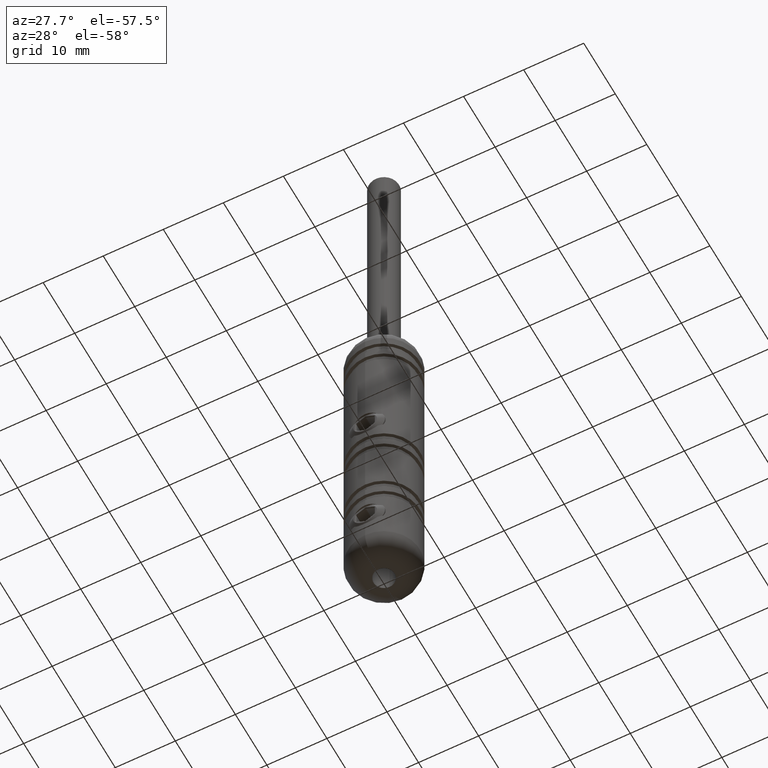
[diagram: clean part render]
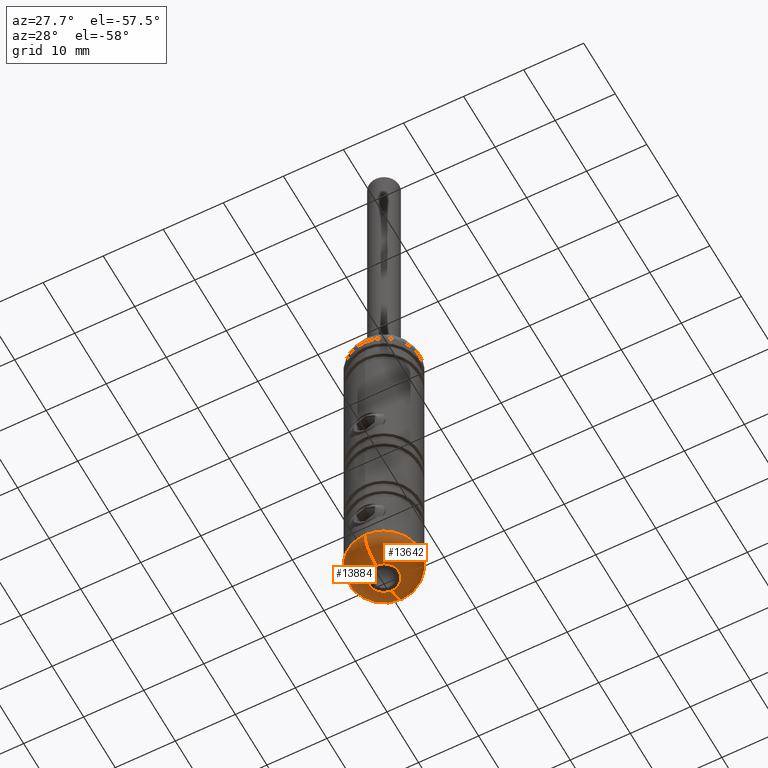
[diagram: same view with one multi-face feature highlighted, each face labeled with its STEP entity id]
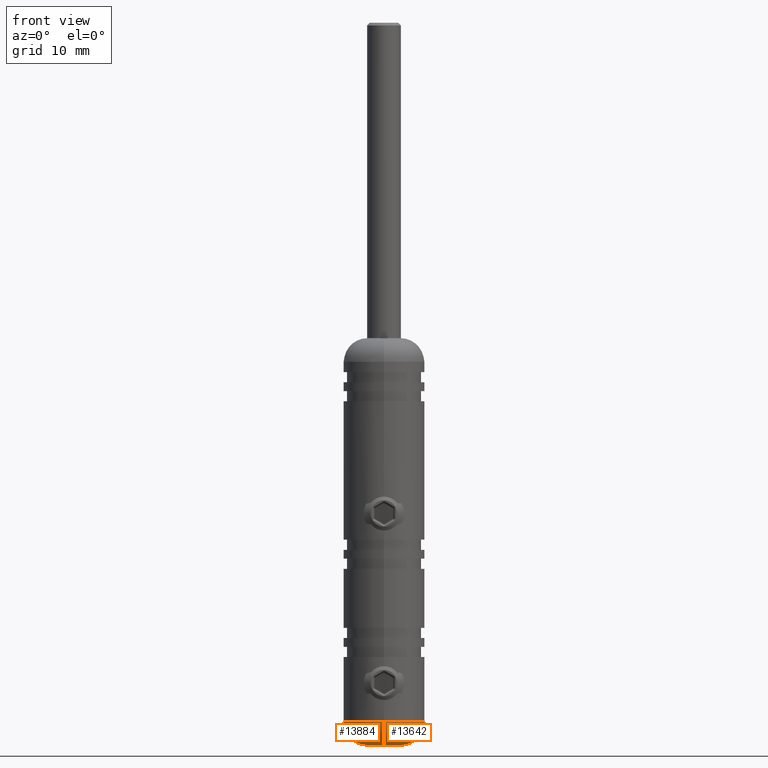
[diagram: same view with one multi-face feature highlighted, each face labeled with its STEP entity id]
A machine part, auxiliary view. The highlighted faces form ONE feature: a constant-radius fillet chain: 2 tangent blend faces with common blend radius 3.5 mm. The faces share edges in the B-rep.
A second angle (front view) of the same feature is appended — it is thin or edge-on in the first view.
Their STEP definitions:
[1] entity #13884 (Torus):
#930 = DIRECTION ( 'NONE',  ( -1.000000000000000000, -0.0000000000000000000, 0.0000000000000000000 ) ) ;
#973 = EDGE_CURVE ( 'NONE', #1718, #4152, #6203, .T. ) ;
#1162 = DIRECTION ( 'NONE',  ( 0.0000000000000000000, -1.000000000000000000, 0.0000000000000000000 ) ) ;
#1718 = VERTEX_POINT ( 'NONE', #8542 ) ;
#1755 = TOROIDAL_SURFACE ( 'NONE', #10000, 2.499999999999991600, 3.500000000000000000 ) ;
#1883 = CARTESIAN_POINT ( 'NONE',  ( 3.061616997868372300E-016, 2.499999999999988000, -26.49999999999999600 ) ) ;
#2388 = DIRECTION ( 'NONE',  ( 0.0000000000000000000, 0.0000000000000000000, 1.000000000000000000 ) ) ;
#4152 = VERTEX_POINT ( 'NONE', #12722 ) ;
#4240 = DIRECTION ( 'NONE',  ( 0.0000000000000000000, -6.241551396031028600E-017, -1.000000000000000000 ) ) ;
#4519 = CIRCLE ( 'NONE', #15533, 3.500000000000000000 ) ;
#5638 = CARTESIAN_POINT ( 'NONE',  ( 5.204748896376240800E-016, 2.499999999999987600, -30.00000000000000000 ) ) ;
#5874 = DIRECTION ( 'NONE',  ( 1.224646799147353200E-016, 1.000000000000000000, 0.0000000000000000000 ) ) ;
#5902 = CARTESIAN_POINT ( 'NONE',  ( 0.0000000000000000000, -2.499999999999995100, -30.00000000000000000 ) ) ;
#6203 = CIRCLE ( 'NONE', #7795, 5.999999999999991100 ) ;
#6717 = EDGE_CURVE ( 'NONE', #9518, #4152, #6950, .T. ) ;
#6950 = CIRCLE ( 'NONE', #10410, 3.499999999999999600 ) ;
#7552 = ORIENTED_EDGE ( 'NONE', *, *, #11307, .F. ) ;
#7559 = CARTESIAN_POINT ( 'NONE',  ( 0.0000000000000000000, -2.499999999999994700, -26.49999999999999600 ) ) ;
#7795 = AXIS2_PLACEMENT_3D ( 'NONE', #15819, #7847, #1162 ) ;
#7847 = DIRECTION ( 'NONE',  ( -0.0000000000000000000, 6.241551396031028600E-017, 1.000000000000000000 ) ) ;
#8236 = DIRECTION ( 'NONE',  ( 0.0000000000000000000, -1.000000000000000000, 0.0000000000000000000 ) ) ;
#8525 = ORIENTED_EDGE ( 'NONE', *, *, #16180, .F. ) ;
#8542 = CARTESIAN_POINT ( 'NONE',  ( 7.347880794884108900E-016, 5.999999999999987600, -26.49999999999999600 ) ) ;
#9518 = VERTEX_POINT ( 'NONE', #5902 ) ;
#9533 = EDGE_LOOP ( 'NONE', ( #7552, #8525, #10586, #14081 ) ) ;
#10000 = AXIS2_PLACEMENT_3D ( 'NONE', #17119, #11794, #13102 ) ;
#10410 = AXIS2_PLACEMENT_3D ( 'NONE', #7559, #930, #2388 ) ;
#10586 = ORIENTED_EDGE ( 'NONE', *, *, #6717, .T. ) ;
#10708 = AXIS2_PLACEMENT_3D ( 'NONE', #17350, #4240, #8236 ) ;
#11170 = CIRCLE ( 'NONE', #10708, 2.499999999999991600 ) ;
#11307 = EDGE_CURVE ( 'NONE', #15425, #1718, #4519, .T. ) ;
#11794 = DIRECTION ( 'NONE',  ( -0.0000000000000000000, 6.241551396031028600E-017, 1.000000000000000000 ) ) ;
#12722 = CARTESIAN_POINT ( 'NONE',  ( 0.0000000000000000000, -5.999999999999994700, -26.49999999999999600 ) ) ;
#12852 = FACE_OUTER_BOUND ( 'NONE', #9533, .T. ) ;
#13102 = DIRECTION ( 'NONE',  ( 0.0000000000000000000, -1.000000000000000000, 6.241551396031028600E-017 ) ) ;
#13884 = ADVANCED_FACE ( 'NONE', ( #12852 ), #1755, .T. ) ;
#14081 = ORIENTED_EDGE ( 'NONE', *, *, #973, .F. ) ;
#15198 = DIRECTION ( 'NONE',  ( 1.000000000000000000, -1.224646799147353200E-016, 7.643695938863093300E-033 ) ) ;
#15425 = VERTEX_POINT ( 'NONE', #5638 ) ;
#15533 = AXIS2_PLACEMENT_3D ( 'NONE', #1883, #15198, #5874 ) ;
#15819 = CARTESIAN_POINT ( 'NONE',  ( 0.0000000000000000000, -3.526476538757531000E-015, -26.49999999999999600 ) ) ;
#16180 = EDGE_CURVE ( 'NONE', #9518, #15425, #11170, .T. ) ;
#17119 = CARTESIAN_POINT ( 'NONE',  ( 0.0000000000000000000, -3.526476538757531000E-015, -26.49999999999999600 ) ) ;
#17350 = CARTESIAN_POINT ( 'NONE',  ( 0.0000000000000000000, -3.744930837618617200E-015, -30.00000000000000000 ) ) ;
[2] entity #13642 (Torus):
#212 = CARTESIAN_POINT ( 'NONE',  ( 0.0000000000000000000, -3.526476538757531000E-015, -26.49999999999999600 ) ) ;
#317 = CARTESIAN_POINT ( 'NONE',  ( 0.0000000000000000000, -3.526476538757531000E-015, -26.49999999999999600 ) ) ;
#542 = DIRECTION ( 'NONE',  ( -0.0000000000000000000, 6.241551396031028600E-017, 1.000000000000000000 ) ) ;
#734 = ORIENTED_EDGE ( 'NONE', *, *, #11331, .F. ) ;
#930 = DIRECTION ( 'NONE',  ( -1.000000000000000000, -0.0000000000000000000, 0.0000000000000000000 ) ) ;
#991 = ORIENTED_EDGE ( 'NONE', *, *, #15175, .F. ) ;
#1551 = DIRECTION ( 'NONE',  ( 0.0000000000000000000, -1.000000000000000000, 6.241551396031028600E-017 ) ) ;
#1718 = VERTEX_POINT ( 'NONE', #8542 ) ;
#1883 = CARTESIAN_POINT ( 'NONE',  ( 3.061616997868372300E-016, 2.499999999999988000, -26.49999999999999600 ) ) ;
#2388 = DIRECTION ( 'NONE',  ( 0.0000000000000000000, 0.0000000000000000000, 1.000000000000000000 ) ) ;
#2678 = AXIS2_PLACEMENT_3D ( 'NONE', #317, #542, #4452 ) ;
#3596 = DIRECTION ( 'NONE',  ( 0.0000000000000000000, -6.241551396031028600E-017, -1.000000000000000000 ) ) ;
#3947 = ORIENTED_EDGE ( 'NONE', *, *, #6717, .F. ) ;
#4152 = VERTEX_POINT ( 'NONE', #12722 ) ;
#4452 = DIRECTION ( 'NONE',  ( 0.0000000000000000000, -1.000000000000000000, 0.0000000000000000000 ) ) ;
#4519 = CIRCLE ( 'NONE', #15533, 3.500000000000000000 ) ;
#4722 = CARTESIAN_POINT ( 'NONE',  ( 0.0000000000000000000, -3.744930837618617200E-015, -30.00000000000000000 ) ) ;
#5638 = CARTESIAN_POINT ( 'NONE',  ( 5.204748896376240800E-016, 2.499999999999987600, -30.00000000000000000 ) ) ;
#5874 = DIRECTION ( 'NONE',  ( 1.224646799147353200E-016, 1.000000000000000000, 0.0000000000000000000 ) ) ;
#5902 = CARTESIAN_POINT ( 'NONE',  ( 0.0000000000000000000, -2.499999999999995100, -30.00000000000000000 ) ) ;
#6717 = EDGE_CURVE ( 'NONE', #9518, #4152, #6950, .T. ) ;
#6899 = DIRECTION ( 'NONE',  ( -0.0000000000000000000, 6.241551396031028600E-017, 1.000000000000000000 ) ) ;
#6950 = CIRCLE ( 'NONE', #10410, 3.499999999999999600 ) ;
#7304 = AXIS2_PLACEMENT_3D ( 'NONE', #212, #6899, #1551 ) ;
#7559 = CARTESIAN_POINT ( 'NONE',  ( 0.0000000000000000000, -2.499999999999994700, -26.49999999999999600 ) ) ;
#8036 = EDGE_LOOP ( 'NONE', ( #991, #13497, #734, #3947 ) ) ;
#8542 = CARTESIAN_POINT ( 'NONE',  ( 7.347880794884108900E-016, 5.999999999999987600, -26.49999999999999600 ) ) ;
#8940 = DIRECTION ( 'NONE',  ( 0.0000000000000000000, -1.000000000000000000, 0.0000000000000000000 ) ) ;
#9518 = VERTEX_POINT ( 'NONE', #5902 ) ;
#10410 = AXIS2_PLACEMENT_3D ( 'NONE', #7559, #930, #2388 ) ;
#11307 = EDGE_CURVE ( 'NONE', #15425, #1718, #4519, .T. ) ;
#11331 = EDGE_CURVE ( 'NONE', #4152, #1718, #12103, .T. ) ;
#12103 = CIRCLE ( 'NONE', #2678, 5.999999999999991100 ) ;
#12722 = CARTESIAN_POINT ( 'NONE',  ( 0.0000000000000000000, -5.999999999999994700, -26.49999999999999600 ) ) ;
#13493 = FACE_OUTER_BOUND ( 'NONE', #8036, .T. ) ;
#13497 = ORIENTED_EDGE ( 'NONE', *, *, #11307, .T. ) ;
#13642 = ADVANCED_FACE ( 'NONE', ( #13493 ), #16817, .T. ) ;
#13692 = AXIS2_PLACEMENT_3D ( 'NONE', #4722, #3596, #8940 ) ;
#15175 = EDGE_CURVE ( 'NONE', #15425, #9518, #15516, .T. ) ;
#15198 = DIRECTION ( 'NONE',  ( 1.000000000000000000, -1.224646799147353200E-016, 7.643695938863093300E-033 ) ) ;
#15425 = VERTEX_POINT ( 'NONE', #5638 ) ;
#15516 = CIRCLE ( 'NONE', #13692, 2.499999999999991600 ) ;
#15533 = AXIS2_PLACEMENT_3D ( 'NONE', #1883, #15198, #5874 ) ;
#16817 = TOROIDAL_SURFACE ( 'NONE', #7304, 2.499999999999991600, 3.500000000000000000 ) ;